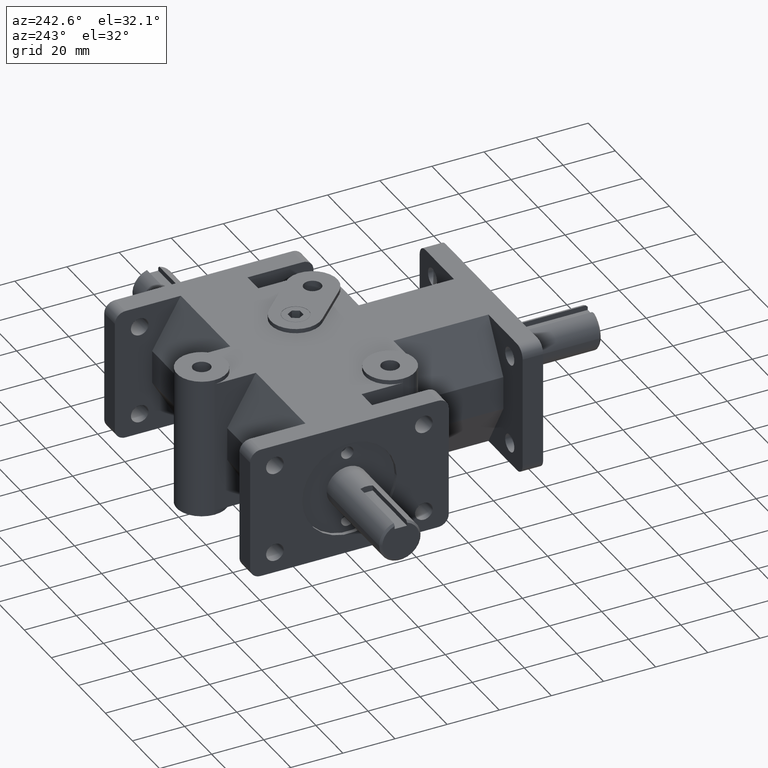
[diagram: clean part render]
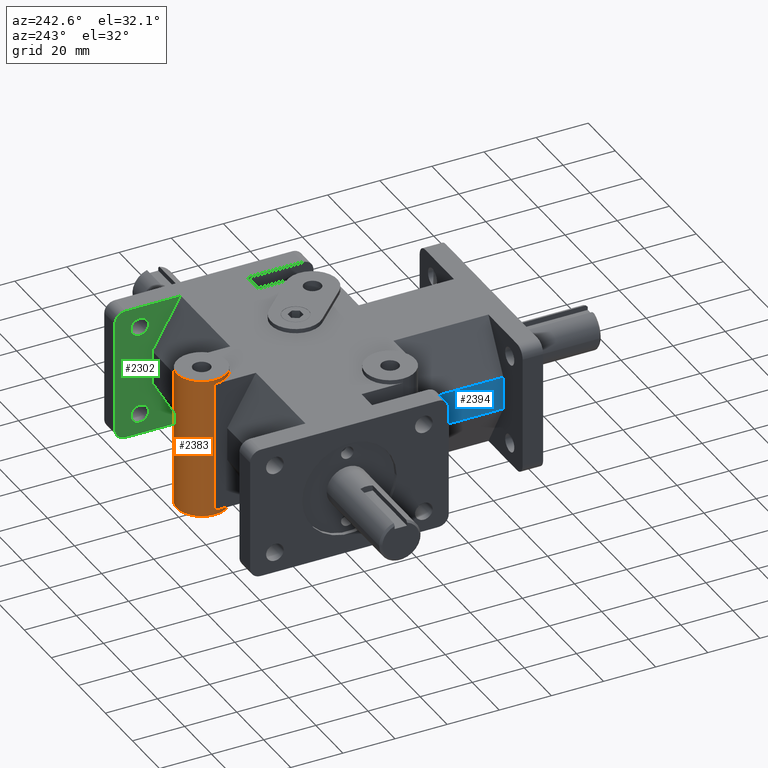
[diagram: same view with three faces highlighted in distinct colors, each labeled with its STEP entity id]
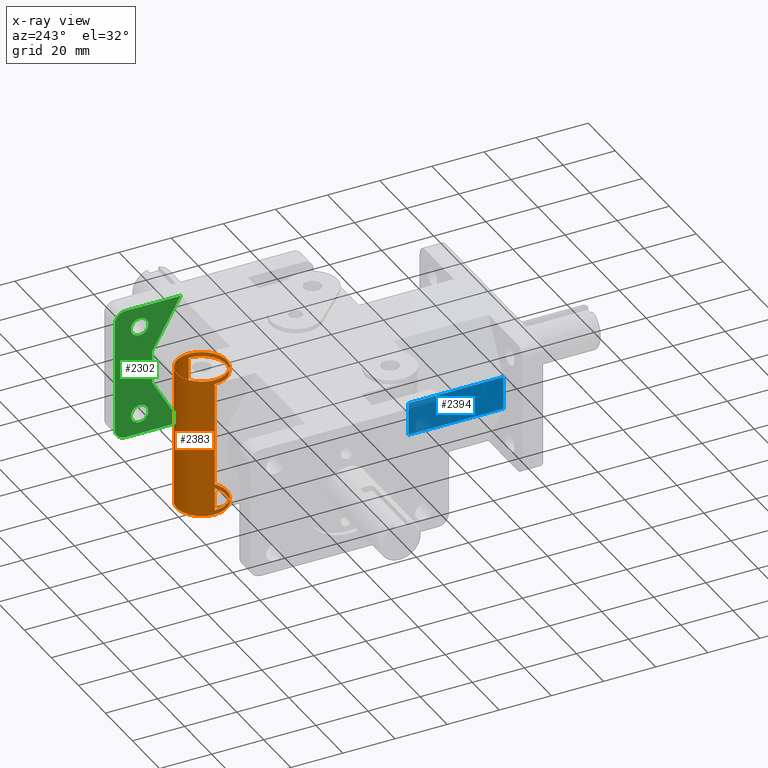
[diagram: x-ray of the same camera — body ghosted, the three highlighted faces saturated]
A machine part, auxiliary view with three faces highlighted in distinct colors.
The next image is the same camera in x-ray (body ghosted, the three faces saturated) — at least one of them is partly hidden behind the body in this view.
Their STEP definitions:

[orange] entity #2383 — the highlighted cylindrical surface (bore or boss wall) has radius 9.525 mm, axis along (0, 0, -1).
#264=FACE_OUTER_BOUND('',#428,.T.);
#428=EDGE_LOOP('',(#2126,#2127,#2128,#2129,#2130,#2131,#2132,#2133,#2134,
#2135));
#657=LINE('',#4006,#879);
#658=LINE('',#4008,#880);
#659=LINE('',#4009,#881);
#660=LINE('',#4010,#882);
#879=VECTOR('',#3294,1.);
#880=VECTOR('',#3297,0.375);
#881=VECTOR('',#3298,1.);
#882=VECTOR('',#3299,0.375);
#952=CIRCLE('',#2503,0.375);
#959=CIRCLE('',#2512,0.375);
#1000=CIRCLE('',#2620,0.375);
#1001=CIRCLE('',#2622,0.375);
#1104=VERTEX_POINT('',#3601);
#1105=VERTEX_POINT('',#3603);
#1124=VERTEX_POINT('',#3650);
#1125=VERTEX_POINT('',#3652);
#1221=VERTEX_POINT('',#3987);
#1222=VERTEX_POINT('',#3990);
#1346=EDGE_CURVE('',#1104,#1105,#952,.T.);
#1373=EDGE_CURVE('',#1124,#1125,#959,.T.);
#1533=EDGE_CURVE('',#1221,#1221,#1000,.T.);
#1534=EDGE_CURVE('',#1222,#1222,#1001,.T.);
#1540=EDGE_CURVE('',#1104,#1125,#657,.T.);
#1541=EDGE_CURVE('',#1222,#1124,#658,.T.);
#1542=EDGE_CURVE('',#1105,#1124,#659,.T.);
#1543=EDGE_CURVE('',#1105,#1221,#660,.T.);
#2126=ORIENTED_EDGE('',*,*,#1534,.T.);
#2127=ORIENTED_EDGE('',*,*,#1541,.T.);
#2128=ORIENTED_EDGE('',*,*,#1542,.F.);
#2129=ORIENTED_EDGE('',*,*,#1543,.T.);
#2130=ORIENTED_EDGE('',*,*,#1533,.T.);
#2131=ORIENTED_EDGE('',*,*,#1543,.F.);
#2132=ORIENTED_EDGE('',*,*,#1346,.F.);
#2133=ORIENTED_EDGE('',*,*,#1540,.T.);
#2134=ORIENTED_EDGE('',*,*,#1373,.F.);
#2135=ORIENTED_EDGE('',*,*,#1541,.F.);
#2267=CYLINDRICAL_SURFACE('',#2632,0.375);
#2383=ADVANCED_FACE('',(#264),#2267,.T.);
#2503=AXIS2_PLACEMENT_3D('',#3604,#2898,#2899);
#2512=AXIS2_PLACEMENT_3D('',#3653,#2936,#2937);
#2620=AXIS2_PLACEMENT_3D('',#3988,#3265,#3266);
#2622=AXIS2_PLACEMENT_3D('',#3991,#3269,#3270);
#2632=AXIS2_PLACEMENT_3D('',#4007,#3295,#3296);
#2898=DIRECTION('center_axis',(0.,0.,-1.));
#2899=DIRECTION('ref_axis',(1.,0.,0.));
#2936=DIRECTION('center_axis',(0.,0.,1.));
#2937=DIRECTION('ref_axis',(1.,0.,0.));
#3265=DIRECTION('center_axis',(0.,0.,-1.));
#3266=DIRECTION('ref_axis',(1.,0.,0.));
#3269=DIRECTION('center_axis',(0.,0.,1.));
#3270=DIRECTION('ref_axis',(1.,0.,0.));
#3294=DIRECTION('',(0.,0.,-1.));
#3295=DIRECTION('center_axis',(0.,0.,-1.));
#3296=DIRECTION('ref_axis',(1.,0.,0.));
#3297=DIRECTION('',(0.,0.,1.));
#3298=DIRECTION('',(0.,0.,-1.));
#3299=DIRECTION('',(0.,0.,1.));
#3601=CARTESIAN_POINT('',(0.375,4.38,1.));
#3603=CARTESIAN_POINT('',(-0.375,4.38,1.));
#3604=CARTESIAN_POINT('Origin',(0.,4.38,1.));
#3650=CARTESIAN_POINT('',(-0.375,4.38,-1.));
#3652=CARTESIAN_POINT('',(0.375,4.38,-1.));
#3653=CARTESIAN_POINT('Origin',(0.,4.38,-1.));
#3987=CARTESIAN_POINT('',(-0.375,4.38,1.065));
#3988=CARTESIAN_POINT('Origin',(0.,4.38,1.065));
#3990=CARTESIAN_POINT('',(-0.375,4.38,-1.065));
#3991=CARTESIAN_POINT('Origin',(0.,4.38,-1.065));
#4006=CARTESIAN_POINT('',(0.375,4.38,0.));
#4007=CARTESIAN_POINT('Origin',(0.,4.38,0.));
#4008=CARTESIAN_POINT('',(-0.375,4.38,0.));
#4009=CARTESIAN_POINT('',(-0.375,4.38,0.));
#4010=CARTESIAN_POINT('',(-0.375,4.38,0.));

[blue] entity #2394 — the highlighted planar face has unit normal (-1, 0, 0).
#146=PLANE('',#2643);
#275=FACE_OUTER_BOUND('',#443,.T.);
#443=EDGE_LOOP('',(#2200,#2201,#2202,#2203));
#487=LINE('',#3525,#709);
#633=LINE('',#3926,#855);
#635=LINE('',#3930,#857);
#671=LINE('',#4031,#893);
#709=VECTOR('',#2836,1.);
#855=VECTOR('',#3194,1.);
#857=VECTOR('',#3198,1.);
#893=VECTOR('',#3330,1.);
#1072=VERTEX_POINT('',#3522);
#1073=VERTEX_POINT('',#3524);
#1204=VERTEX_POINT('',#3924);
#1205=VERTEX_POINT('',#3928);
#1303=EDGE_CURVE('',#1072,#1073,#487,.T.);
#1503=EDGE_CURVE('',#1073,#1204,#633,.T.);
#1505=EDGE_CURVE('',#1205,#1072,#635,.T.);
#1554=EDGE_CURVE('',#1205,#1204,#671,.T.);
#2200=ORIENTED_EDGE('',*,*,#1503,.F.);
#2201=ORIENTED_EDGE('',*,*,#1303,.F.);
#2202=ORIENTED_EDGE('',*,*,#1505,.F.);
#2203=ORIENTED_EDGE('',*,*,#1554,.T.);
#2394=ADVANCED_FACE('',(#275),#146,.T.);
#2643=AXIS2_PLACEMENT_3D('',#4032,#3331,#3332);
#2836=DIRECTION('',(0.,0.,-1.));
#3194=DIRECTION('',(0.,1.,0.));
#3198=DIRECTION('',(0.,-1.,0.));
#3330=DIRECTION('',(0.,0.,-1.));
#3331=DIRECTION('center_axis',(-1.,0.,0.));
#3332=DIRECTION('ref_axis',(0.,1.,0.));
#3522=CARTESIAN_POINT('',(-0.9375,0.31,0.25));
#3524=CARTESIAN_POINT('',(-0.9375,0.31,-0.25));
#3525=CARTESIAN_POINT('',(-0.9375,0.31,0.));
#3924=CARTESIAN_POINT('',(-0.9375,1.745,-0.25));
#3926=CARTESIAN_POINT('',(-0.9375,2.08621389024368,-0.25));
#3928=CARTESIAN_POINT('',(-0.9375,1.745,0.25));
#3930=CARTESIAN_POINT('',(-0.9375,2.08621389024368,0.25));
#4031=CARTESIAN_POINT('',(-0.9375,1.745,0.));
#4032=CARTESIAN_POINT('Origin',(-0.9375,1.745,0.));

[green] entity #2302 — the highlighted planar face has unit normal (-1, 0, 0).
#40=FACE_BOUND('',#328,.T.);
#41=FACE_BOUND('',#329,.T.);
#81=PLANE('',#2496);
#183=FACE_OUTER_BOUND('',#327,.T.);
#327=EDGE_LOOP('',(#1689,#1690,#1691,#1692,#1693,#1694,#1695,#1696));
#328=EDGE_LOOP('',(#1697));
#329=EDGE_LOOP('',(#1698));
#503=LINE('',#3566,#725);
#504=LINE('',#3568,#726);
#505=LINE('',#3570,#727);
#506=LINE('',#3572,#728);
#507=LINE('',#3573,#729);
#508=LINE('',#3574,#730);
#725=VECTOR('',#2870,1.);
#726=VECTOR('',#2871,1.);
#727=VECTOR('',#2872,1.);
#728=VECTOR('',#2873,1.);
#729=VECTOR('',#2874,1.);
#730=VECTOR('',#2875,1.);
#930=CIRCLE('',#2471,0.16);
#932=CIRCLE('',#2474,0.16);
#947=CIRCLE('',#2497,0.1325);
#948=CIRCLE('',#2498,0.1325);
#1049=VERTEX_POINT('',#3469);
#1050=VERTEX_POINT('',#3471);
#1053=VERTEX_POINT('',#3478);
#1054=VERTEX_POINT('',#3480);
#1089=VERTEX_POINT('',#3565);
#1090=VERTEX_POINT('',#3567);
#1091=VERTEX_POINT('',#3569);
#1092=VERTEX_POINT('',#3571);
#1093=VERTEX_POINT('',#3575);
#1094=VERTEX_POINT('',#3577);
#1279=EDGE_CURVE('',#1049,#1050,#930,.T.);
#1283=EDGE_CURVE('',#1053,#1054,#932,.T.);
#1325=EDGE_CURVE('',#1049,#1089,#503,.T.);
#1326=EDGE_CURVE('',#1090,#1089,#504,.F.);
#1327=EDGE_CURVE('',#1091,#1090,#505,.T.);
#1328=EDGE_CURVE('',#1092,#1091,#506,.F.);
#1329=EDGE_CURVE('',#1092,#1054,#507,.T.);
#1330=EDGE_CURVE('',#1053,#1050,#508,.T.);
#1331=EDGE_CURVE('',#1093,#1093,#947,.T.);
#1332=EDGE_CURVE('',#1094,#1094,#948,.T.);
#1689=ORIENTED_EDGE('',*,*,#1279,.F.);
#1690=ORIENTED_EDGE('',*,*,#1325,.T.);
#1691=ORIENTED_EDGE('',*,*,#1326,.F.);
#1692=ORIENTED_EDGE('',*,*,#1327,.F.);
#1693=ORIENTED_EDGE('',*,*,#1328,.F.);
#1694=ORIENTED_EDGE('',*,*,#1329,.T.);
#1695=ORIENTED_EDGE('',*,*,#1283,.F.);
#1696=ORIENTED_EDGE('',*,*,#1330,.T.);
#1697=ORIENTED_EDGE('',*,*,#1331,.T.);
#1698=ORIENTED_EDGE('',*,*,#1332,.T.);
#2302=ADVANCED_FACE('',(#183,#40,#41),#81,.T.);
#2471=AXIS2_PLACEMENT_3D('',#3472,#2789,#2790);
#2474=AXIS2_PLACEMENT_3D('',#3481,#2797,#2798);
#2496=AXIS2_PLACEMENT_3D('',#3564,#2868,#2869);
#2497=AXIS2_PLACEMENT_3D('',#3576,#2876,#2877);
#2498=AXIS2_PLACEMENT_3D('',#3578,#2878,#2879);
#2789=DIRECTION('center_axis',(1.,0.,0.));
#2790=DIRECTION('ref_axis',(0.,0.707106781186548,-0.707106781186548));
#2797=DIRECTION('center_axis',(1.,0.,0.));
#2798=DIRECTION('ref_axis',(0.,0.707106781186548,0.707106781186548));
#2868=DIRECTION('center_axis',(-1.,0.,0.));
#2869=DIRECTION('ref_axis',(0.,1.,0.));
#2870=DIRECTION('',(0.,-1.,0.));
#2871=DIRECTION('',(0.,0.500000258168844,0.866025254730536));
#2872=DIRECTION('',(0.,0.,-1.));
#2873=DIRECTION('',(0.,-0.500000258168844,0.866025254730536));
#2874=DIRECTION('',(0.,1.,0.));
#2875=DIRECTION('',(0.,0.,-1.));
#2876=DIRECTION('center_axis',(1.,0.,0.));
#2877=DIRECTION('ref_axis',(0.,1.,0.));
#2878=DIRECTION('center_axis',(1.,0.,0.));
#2879=DIRECTION('ref_axis',(0.,1.,0.));
#3469=CARTESIAN_POINT('',(1.815,4.59,-1.));
#3471=CARTESIAN_POINT('',(1.815,4.75,-0.84));
#3472=CARTESIAN_POINT('Origin',(1.815,4.59,-0.84));
#3478=CARTESIAN_POINT('',(1.815,4.75,0.84));
#3480=CARTESIAN_POINT('',(1.815,4.59,1.));
#3481=CARTESIAN_POINT('Origin',(1.815,4.59,0.84));
#3564=CARTESIAN_POINT('Origin',(1.815,4.75,0.));
#3565=CARTESIAN_POINT('',(1.815,3.754487,-1.));
#3566=CARTESIAN_POINT('',(1.815,3.58871389024368,-1.));
#3567=CARTESIAN_POINT('',(1.815,4.1875,-0.25));
#3568=CARTESIAN_POINT('',(1.815,4.20368592897826,-0.221965167942549));
#3569=CARTESIAN_POINT('',(1.815,4.1875,0.25));
#3570=CARTESIAN_POINT('',(1.815,4.1875,0.));
#3571=CARTESIAN_POINT('',(1.815,3.754487,1.));
#3572=CARTESIAN_POINT('',(1.815,4.20368592897826,0.221965167942549));
#3573=CARTESIAN_POINT('',(1.815,4.1875,1.));
#3574=CARTESIAN_POINT('',(1.815,4.75,0.));
#3575=CARTESIAN_POINT('',(1.815,4.2425,0.6875));
#3576=CARTESIAN_POINT('Origin',(1.815,4.375,0.6875));
#3577=CARTESIAN_POINT('',(1.815,4.2425,-0.6875));
#3578=CARTESIAN_POINT('Origin',(1.815,4.375,-0.6875));